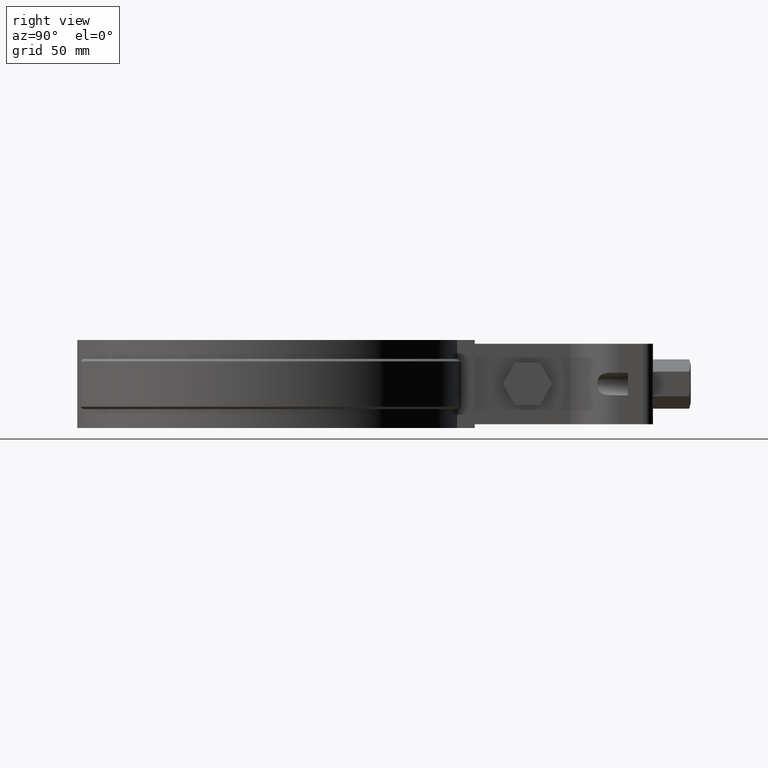
[diagram: clean part render]
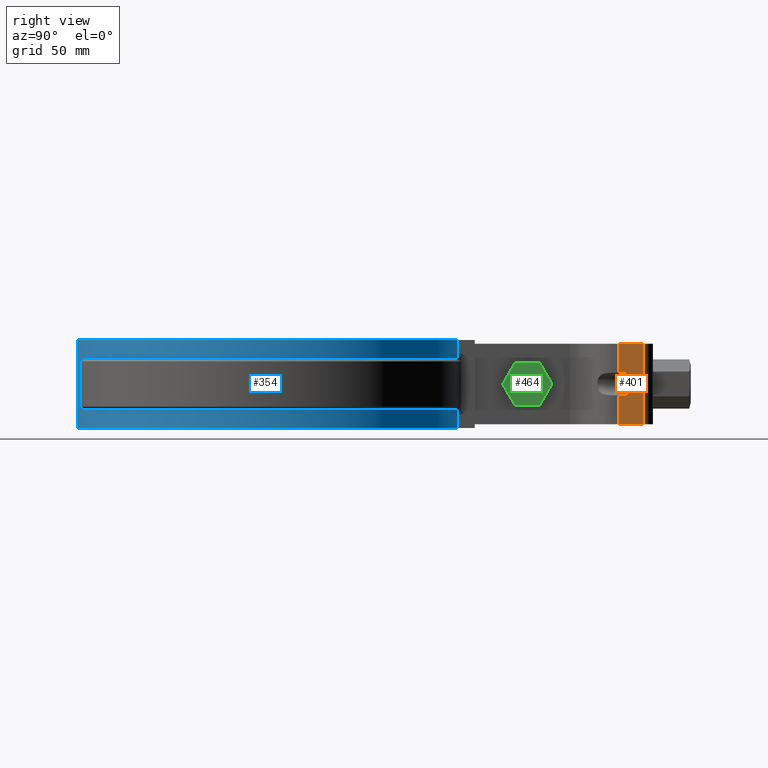
[diagram: same view with three faces highlighted in distinct colors, each labeled with its STEP entity id]
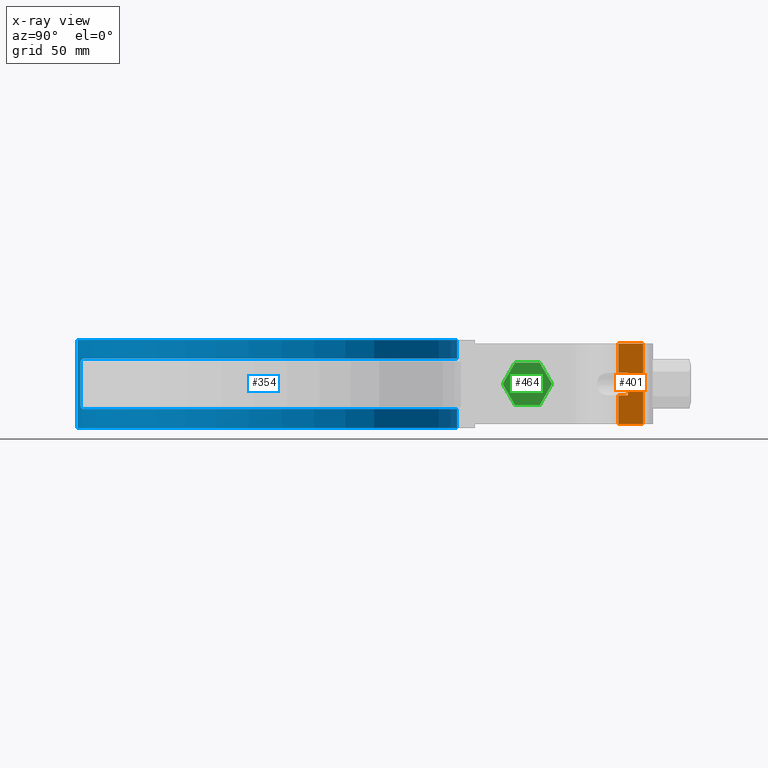
[diagram: x-ray of the same camera — body ghosted, the three highlighted faces saturated]
A machine part, right view with three faces highlighted in distinct colors.
The next image is the same camera in x-ray (body ghosted, the three faces saturated) — at least one of them is partly hidden behind the body in this view.
Their STEP definitions:

[orange] entity #401 — the highlighted planar face has unit normal (1, -0, 0).
#401 = ADVANCED_FACE( '', ( #675 ), #676, .T. );
#675 = FACE_OUTER_BOUND( '', #1810, .T. );
#676 = PLANE( '', #1811 );
#1810 = EDGE_LOOP( '', ( #4233, #4234, #4235, #4236, #4237, #4238, #4239, #4240 ) );
#1811 = AXIS2_PLACEMENT_3D( '', #4241, #4242, #4243 );
#4233 = ORIENTED_EDGE( '', *, *, #5206, .F. );
#4234 = ORIENTED_EDGE( '', *, *, #5207, .T. );
#4235 = ORIENTED_EDGE( '', *, *, #5208, .F. );
#4236 = ORIENTED_EDGE( '', *, *, #5209, .F. );
#4237 = ORIENTED_EDGE( '', *, *, #5210, .F. );
#4238 = ORIENTED_EDGE( '', *, *, #5211, .T. );
#4239 = ORIENTED_EDGE( '', *, *, #5203, .T. );
#4240 = ORIENTED_EDGE( '', *, *, #5212, .F. );
#4241 = CARTESIAN_POINT( '', ( 17.5000000000000, 139.502812218311, -32.0000000000000 ) );
#4242 = DIRECTION( '', ( 1.00000000000000, -6.93889390390723E-017, 0.000000000000000 ) );
#4243 = DIRECTION( '', ( -6.93889390390723E-017, -1.00000000000000, 0.000000000000000 ) );
#5203 = EDGE_CURVE( '', #5833, #5830, #5834, .T. );
#5206 = EDGE_CURVE( '', #5838, #5839, #5840, .T. );
#5207 = EDGE_CURVE( '', #5838, #5841, #5842, .T. );
#5208 = EDGE_CURVE( '', #5843, #5841, #5844, .T. );
#5209 = EDGE_CURVE( '', #5845, #5843, #5846, .T. );
#5210 = EDGE_CURVE( '', #5847, #5845, #5848, .T. );
#5211 = EDGE_CURVE( '', #5847, #5833, #5849, .T. );
#5212 = EDGE_CURVE( '', #5839, #5830, #5850, .T. );
#5830 = VERTEX_POINT( '', #8537 );
#5833 = VERTEX_POINT( '', #8540 );
#5834 = LINE( '', #8541, #8542 );
#5838 = VERTEX_POINT( '', #8547 );
#5839 = VERTEX_POINT( '', #8548 );
#5840 = LINE( '', #8549, #8550 );
#5841 = VERTEX_POINT( '', #8551 );
#5842 = LINE( '', #8552, #8553 );
#5843 = VERTEX_POINT( '', #8554 );
#5844 = LINE( '', #8555, #8556 );
#5845 = VERTEX_POINT( '', #8557 );
#5846 = LINE( '', #8558, #8559 );
#5847 = VERTEX_POINT( '', #8560 );
#5848 = LINE( '', #8561, #8562 );
#5849 = LINE( '', #8563, #8564 );
#5850 = LINE( '', #8565, #8566 );
#8537 = CARTESIAN_POINT( '', ( 17.5000000000000, 149.297141712794, -3.46944695195361E-015 ) );
#8540 = CARTESIAN_POINT( '', ( 17.5000000000000, 149.297141712794, -32.0000000000000 ) );
#8541 = CARTESIAN_POINT( '', ( 17.5000000000000, 149.297141712794, -32.0000000000000 ) );
#8542 = VECTOR( '', #9590, 1000.00000000000 );
#8547 = CARTESIAN_POINT( '', ( 17.5000000000000, 139.502812218311, -11.5000000000000 ) );
#8548 = CARTESIAN_POINT( '', ( 17.5000000000000, 139.502812218311, -3.46944695195361E-015 ) );
#8549 = CARTESIAN_POINT( '', ( 17.5000000000000, 139.502812218311, -32.0000000000000 ) );
#8550 = VECTOR( '', #9595, 1000.00000000000 );
#8551 = CARTESIAN_POINT( '', ( 17.5000000000000, 143.297141712794, -11.5000000000000 ) );
#8552 = CARTESIAN_POINT( '', ( 17.5000000000000, 128.297141712794, -11.5000000000000 ) );
#8553 = VECTOR( '', #9596, 1000.00000000000 );
#8554 = CARTESIAN_POINT( '', ( 17.5000000000000, 143.297141712794, -20.5000000000000 ) );
#8555 = CARTESIAN_POINT( '', ( 17.5000000000000, 143.297141712794, -32.0000000000000 ) );
#8556 = VECTOR( '', #9597, 1000.00000000000 );
#8557 = CARTESIAN_POINT( '', ( 17.5000000000000, 139.502812218311, -20.5000000000000 ) );
#8558 = CARTESIAN_POINT( '', ( 17.5000000000000, 128.297141712794, -20.5000000000000 ) );
#8559 = VECTOR( '', #9598, 1000.00000000000 );
#8560 = CARTESIAN_POINT( '', ( 17.5000000000000, 139.502812218311, -32.0000000000000 ) );
#8561 = CARTESIAN_POINT( '', ( 17.5000000000000, 139.502812218311, -32.0000000000000 ) );
#8562 = VECTOR( '', #9599, 1000.00000000000 );
#8563 = CARTESIAN_POINT( '', ( 17.5000000000000, 139.502812218311, -32.0000000000000 ) );
#8564 = VECTOR( '', #9600, 1000.00000000000 );
#8565 = CARTESIAN_POINT( '', ( 17.5000000000000, 139.502812218311, -3.46944695195361E-015 ) );
#8566 = VECTOR( '', #9601, 1000.00000000000 );
#9590 = DIRECTION( '', ( 0.000000000000000, 0.000000000000000, 1.00000000000000 ) );
#9595 = DIRECTION( '', ( 0.000000000000000, 0.000000000000000, 1.00000000000000 ) );
#9596 = DIRECTION( '', ( -4.11604168809452E-032, 1.00000000000000, -1.83690953073357E-016 ) );
#9597 = DIRECTION( '', ( 1.27461203448362E-032, 1.83690953073357E-016, 1.00000000000000 ) );
#9598 = DIRECTION( '', ( -4.11604168809452E-032, 1.00000000000000, -1.83690953073357E-016 ) );
#9599 = DIRECTION( '', ( 0.000000000000000, 0.000000000000000, 1.00000000000000 ) );
#9600 = DIRECTION( '', ( 6.93889390390723E-017, 1.00000000000000, 0.000000000000000 ) );
#9601 = DIRECTION( '', ( 6.93889390390723E-017, 1.00000000000000, 0.000000000000000 ) );

[blue] entity #354 — the highlighted cylindrical surface (partial cylindrical patch) has radius 75.9 mm, axis along (0, 0, -1).
#354 = ADVANCED_FACE( '', ( #581 ), #582, .T. );
#581 = FACE_OUTER_BOUND( '', #1716, .T. );
#582 = CYLINDRICAL_SURFACE( '', #1717, 75.9000000000000 );
#1716 = EDGE_LOOP( '', ( #3470, #3471, #3472, #3473, #3474, #3475, #3476, #3477, #3478, #3479, #3480, #3481, #3482, #3483, #3484, #3485, #3486, #3487, #3488, #3489 ) );
#1717 = AXIS2_PLACEMENT_3D( '', #3490, #3491, #3492 );
#3470 = ORIENTED_EDGE( '', *, *, #5096, .T. );
#3471 = ORIENTED_EDGE( '', *, *, #5097, .T. );
#3472 = ORIENTED_EDGE( '', *, *, #5098, .T. );
#3473 = ORIENTED_EDGE( '', *, *, #5099, .F. );
#3474 = ORIENTED_EDGE( '', *, *, #5100, .T. );
#3475 = ORIENTED_EDGE( '', *, *, #5101, .T. );
#3476 = ORIENTED_EDGE( '', *, *, #5102, .F. );
#3477 = ORIENTED_EDGE( '', *, *, #5103, .F. );
#3478 = ORIENTED_EDGE( '', *, *, #5104, .F. );
#3479 = ORIENTED_EDGE( '', *, *, #5049, .T. );
#3480 = ORIENTED_EDGE( '', *, *, #5105, .T. );
#3481 = ORIENTED_EDGE( '', *, *, #5106, .T. );
#3482 = ORIENTED_EDGE( '', *, *, #5107, .T. );
#3483 = ORIENTED_EDGE( '', *, *, #5108, .T. );
#3484 = ORIENTED_EDGE( '', *, *, #5109, .T. );
#3485 = ORIENTED_EDGE( '', *, *, #5110, .T. );
#3486 = ORIENTED_EDGE( '', *, *, #5111, .F. );
#3487 = ORIENTED_EDGE( '', *, *, #5053, .T. );
#3488 = ORIENTED_EDGE( '', *, *, #5112, .T. );
#3489 = ORIENTED_EDGE( '', *, *, #5113, .F. );
#3490 = CARTESIAN_POINT( '', ( -3.46944695195361E-015, -1.38777878078145E-014, -33.5000000000000 ) );
#3491 = DIRECTION( '', ( 0.000000000000000, 0.000000000000000, -1.00000000000000 ) );
#3492 = DIRECTION( '', ( -0.110671936758893, -0.993856992939143, 0.000000000000000 ) );
#5049 = EDGE_CURVE( '', #5581, #5579, #5582, .T. );
#5053 = EDGE_CURVE( '', #5589, #5587, #5590, .T. );
#5096 = EDGE_CURVE( '', #5665, #5666, #5667, .T. );
#5097 = EDGE_CURVE( '', #5666, #5668, #5669, .T. );
#5098 = EDGE_CURVE( '', #5668, #5670, #5671, .F. );
#5099 = EDGE_CURVE( '', #5672, #5670, #5673, .T. );
#5100 = EDGE_CURVE( '', #5672, #5674, #5675, .T. );
#5101 = EDGE_CURVE( '', #5674, #5676, #5677, .T. );
#5102 = EDGE_CURVE( '', #5678, #5676, #5679, .T. );
#5103 = EDGE_CURVE( '', #5680, #5678, #5681, .T. );
#5104 = EDGE_CURVE( '', #5581, #5680, #5682, .T. );
#5105 = EDGE_CURVE( '', #5579, #5683, #5684, .T. );
#5106 = EDGE_CURVE( '', #5683, #5685, #5686, .T. );
#5107 = EDGE_CURVE( '', #5685, #5687, #5688, .T. );
#5108 = EDGE_CURVE( '', #5687, #5689, #5690, .T. );
#5109 = EDGE_CURVE( '', #5689, #5691, #5692, .F. );
#5110 = EDGE_CURVE( '', #5691, #5693, #5694, .T. );
#5111 = EDGE_CURVE( '', #5589, #5693, #5695, .T. );
#5112 = EDGE_CURVE( '', #5587, #5696, #5697, .T. );
#5113 = EDGE_CURVE( '', #5665, #5696, #5698, .T. );
#5579 = VERTEX_POINT( '', #7288 );
#5581 = VERTEX_POINT( '', #7291 );
#5582 = LINE( '', #7292, #7293 );
#5587 = VERTEX_POINT( '', #7300 );
#5589 = VERTEX_POINT( '', #7303 );
#5590 = LINE( '', #7304, #7305 );
#5665 = VERTEX_POINT( '', #8178 );
#5666 = VERTEX_POINT( '', #8179 );
#5667 = CIRCLE( '', #8180, 75.9000000000000 );
#5668 = VERTEX_POINT( '', #8181 );
#5669 = B_SPLINE_CURVE_WITH_KNOTS( '', 3, ( #8182, #8183, #8184, #8185 ), .UNSPECIFIED., .F., .F., ( 4, 4 ), ( 0.00574025824252765, 0.00596115787424437 ), .UNSPECIFIED. );
#5670 = VERTEX_POINT( '', #8186 );
#5671 = ELLIPSE( '', #8187, 107.338809384118, 75.9000000000000 );
#5672 = VERTEX_POINT( '', #8188 );
#5673 = LINE( '', #8189, #8190 );
#5674 = VERTEX_POINT( '', #8191 );
#5675 = ELLIPSE( '', #8192, 107.338809384118, 75.9000000000000 );
#5676 = VERTEX_POINT( '', #8193 );
#5677 = B_SPLINE_CURVE_WITH_KNOTS( '', 3, ( #8194, #8195, #8196, #8197 ), .UNSPECIFIED., .F., .F., ( 4, 4 ), ( 0.00801465763716970, 0.00823560887261827 ), .UNSPECIFIED. );
#5678 = VERTEX_POINT( '', #8198 );
#5679 = CIRCLE( '', #8199, 75.9000000000000 );
#5680 = VERTEX_POINT( '', #8200 );
#5681 = LINE( '', #8201, #8202 );
#5682 = CIRCLE( '', #8203, 75.9000000000000 );
#5683 = VERTEX_POINT( '', #8204 );
#5684 = CIRCLE( '', #8205, 75.9000000000000 );
#5685 = VERTEX_POINT( '', #8206 );
#5686 = B_SPLINE_CURVE_WITH_KNOTS( '', 3, ( #8207, #8208, #8209, #8210 ), .UNSPECIFIED., .F., .F., ( 4, 4 ), ( 0.00574025824252770, 0.00596115787424437 ), .UNSPECIFIED. );
#5687 = VERTEX_POINT( '', #8211 );
#5688 = ELLIPSE( '', #8212, 107.338809384118, 75.9000000000000 );
#5689 = VERTEX_POINT( '', #8213 );
#5690 = LINE( '', #8214, #8215 );
#5691 = VERTEX_POINT( '', #8216 );
#5692 = ELLIPSE( '', #8217, 107.338809384118, 75.9000000000000 );
#5693 = VERTEX_POINT( '', #8218 );
#5694 = B_SPLINE_CURVE_WITH_KNOTS( '', 3, ( #8219, #8220, #8221, #8222 ), .UNSPECIFIED., .F., .F., ( 4, 4 ), ( 0.00801465763716946, 0.00823560887261823 ), .UNSPECIFIED. );
#5695 = CIRCLE( '', #8223, 75.9000000000000 );
#5696 = VERTEX_POINT( '', #8224 );
#5697 = CIRCLE( '', #8225, 75.9000000000000 );
#5698 = LINE( '', #8226, #8227 );
#7288 = CARTESIAN_POINT( '', ( 8.40000000000000, 75.4337457640809, -26.0000000000000 ) );
#7291 = CARTESIAN_POINT( '', ( 8.40000000000001, 75.4337457640809, -33.5000000000000 ) );
#7292 = CARTESIAN_POINT( '', ( 8.40000000000001, 75.4337457640809, -33.5000000000000 ) );
#7293 = VECTOR( '', #9372, 1000.00000000000 );
#7300 = CARTESIAN_POINT( '', ( 8.40000000000001, 75.4337457640809, 1.50000000000000 ) );
#7303 = CARTESIAN_POINT( '', ( 8.40000000000001, 75.4337457640809, -6.00000000000000 ) );
#7304 = CARTESIAN_POINT( '', ( 8.40000000000001, 75.4337457640809, -33.5000000000000 ) );
#7305 = VECTOR( '', #9376, 1000.00000000000 );
#8178 = CARTESIAN_POINT( '', ( -8.39999999999998, 75.4337457640810, -6.00000000000000 ) );
#8179 = CARTESIAN_POINT( '', ( -19.3256757353931, -73.3984213547570, -6.00000000000000 ) );
#8180 = AXIS2_PLACEMENT_3D( '', #9402, #9403, #9404 );
#8181 = CARTESIAN_POINT( '', ( -19.1154387864888, -73.4534546498666, -6.05345464986656 ) );
#8182 = CARTESIAN_POINT( '', ( -19.3256757353931, -73.3984213547570, -5.99999999999999 ) );
#8183 = CARTESIAN_POINT( '', ( -19.2554621015396, -73.4169084815236, -6.01743064928323 ) );
#8184 = CARTESIAN_POINT( '', ( -19.1853843258704, -73.4352521067349, -6.03525210673483 ) );
#8185 = CARTESIAN_POINT( '', ( -19.1154387864888, -73.4534546498666, -6.05345464986654 ) );
#8186 = CARTESIAN_POINT( '', ( -15.0149925074907, -74.4000000000000, -7.00000000000000 ) );
#8187 = AXIS2_PLACEMENT_3D( '', #9405, #9406, #9407 );
#8188 = CARTESIAN_POINT( '', ( -15.0149925074907, -74.4000000000000, -25.0000000000000 ) );
#8189 = CARTESIAN_POINT( '', ( -15.0149925074907, -74.4000000000000, -26.0000000000000 ) );
#8190 = VECTOR( '', #9408, 1000.00000000000 );
#8191 = CARTESIAN_POINT( '', ( -19.1154387864888, -73.4534546498666, -25.9465453501334 ) );
#8192 = AXIS2_PLACEMENT_3D( '', #9409, #9410, #9411 );
#8193 = CARTESIAN_POINT( '', ( -19.3256757353929, -73.3984213547570, -26.0000000000000 ) );
#8194 = CARTESIAN_POINT( '', ( -19.1154387864888, -73.4534546498666, -25.9465453501335 ) );
#8195 = CARTESIAN_POINT( '', ( -19.1853843258704, -73.4352521067349, -25.9647478932652 ) );
#8196 = CARTESIAN_POINT( '', ( -19.2554621015395, -73.4169084815236, -25.9825693507167 ) );
#8197 = CARTESIAN_POINT( '', ( -19.3256757353929, -73.3984213547570, -26.0000000000000 ) );
#8198 = CARTESIAN_POINT( '', ( -8.39999999999998, 75.4337457640810, -26.0000000000000 ) );
#8199 = AXIS2_PLACEMENT_3D( '', #9412, #9413, #9414 );
#8200 = CARTESIAN_POINT( '', ( -8.39999999999998, 75.4337457640810, -33.5000000000000 ) );
#8201 = CARTESIAN_POINT( '', ( -8.39999999999998, 75.4337457640810, -33.5000000000000 ) );
#8202 = VECTOR( '', #9415, 1000.00000000000 );
#8203 = AXIS2_PLACEMENT_3D( '', #9416, #9417, #9418 );
#8204 = CARTESIAN_POINT( '', ( 19.3256757353931, -73.3984213547570, -26.0000000000000 ) );
#8205 = AXIS2_PLACEMENT_3D( '', #9419, #9420, #9421 );
#8206 = CARTESIAN_POINT( '', ( 19.1154387864888, -73.4534546498666, -25.9465453501335 ) );
#8207 = CARTESIAN_POINT( '', ( 19.3256757353931, -73.3984213547570, -26.0000000000000 ) );
#8208 = CARTESIAN_POINT( '', ( 19.2554621015396, -73.4169084815236, -25.9825693507168 ) );
#8209 = CARTESIAN_POINT( '', ( 19.1853843258704, -73.4352521067349, -25.9647478932652 ) );
#8210 = CARTESIAN_POINT( '', ( 19.1154387864888, -73.4534546498666, -25.9465453501335 ) );
#8211 = CARTESIAN_POINT( '', ( 15.0149925074907, -74.4000000000000, -25.0000000000000 ) );
#8212 = AXIS2_PLACEMENT_3D( '', #9422, #9423, #9424 );
#8213 = CARTESIAN_POINT( '', ( 15.0149925074907, -74.4000000000000, -7.00000000000001 ) );
#8214 = CARTESIAN_POINT( '', ( 15.0149925074907, -74.4000000000000, -26.0000000000000 ) );
#8215 = VECTOR( '', #9425, 1000.00000000000 );
#8216 = CARTESIAN_POINT( '', ( 19.1154387864888, -73.4534546498666, -6.05345464986654 ) );
#8217 = AXIS2_PLACEMENT_3D( '', #9426, #9427, #9428 );
#8218 = CARTESIAN_POINT( '', ( 19.3256757353931, -73.3984213547570, -6.00000000000000 ) );
#8219 = CARTESIAN_POINT( '', ( 19.1154387864888, -73.4534546498666, -6.05345464986653 ) );
#8220 = CARTESIAN_POINT( '', ( 19.1853843258704, -73.4352521067349, -6.03525210673482 ) );
#8221 = CARTESIAN_POINT( '', ( 19.2554621015396, -73.4169084815236, -6.01743064928322 ) );
#8222 = CARTESIAN_POINT( '', ( 19.3256757353931, -73.3984213547570, -5.99999999999998 ) );
#8223 = AXIS2_PLACEMENT_3D( '', #9429, #9430, #9431 );
#8224 = CARTESIAN_POINT( '', ( -8.39999999999998, 75.4337457640810, 1.50000000000000 ) );
#8225 = AXIS2_PLACEMENT_3D( '', #9432, #9433, #9434 );
#8226 = CARTESIAN_POINT( '', ( -8.39999999999998, 75.4337457640810, -33.5000000000000 ) );
#8227 = VECTOR( '', #9435, 1000.00000000000 );
#9372 = DIRECTION( '', ( 0.000000000000000, 0.000000000000000, 1.00000000000000 ) );
#9376 = DIRECTION( '', ( 0.000000000000000, 0.000000000000000, 1.00000000000000 ) );
#9402 = CARTESIAN_POINT( '', ( -3.46944695195361E-015, -1.38777878078145E-014, -6.00000000000000 ) );
#9403 = DIRECTION( '', ( 0.000000000000000, 0.000000000000000, 1.00000000000000 ) );
#9404 = DIRECTION( '', ( 1.00000000000000, 0.000000000000000, 0.000000000000000 ) );
#9405 = CARTESIAN_POINT( '', ( -3.46944695195361E-015, -1.38777878078145E-014, 67.3999999999999 ) );
#9406 = DIRECTION( '', ( 0.000000000000000, 0.707106781186547, -0.707106781186548 ) );
#9407 = DIRECTION( '', ( 0.000000000000000, 0.707106781186548, 0.707106781186547 ) );
#9408 = DIRECTION( '', ( 0.000000000000000, 0.000000000000000, 1.00000000000000 ) );
#9409 = CARTESIAN_POINT( '', ( -3.46944695195361E-015, -1.38777878078145E-014, -99.4000000000000 ) );
#9410 = DIRECTION( '', ( 0.000000000000000, -0.707106781186548, -0.707106781186548 ) );
#9411 = DIRECTION( '', ( 0.000000000000000, -0.707106781186547, 0.707106781186547 ) );
#9412 = CARTESIAN_POINT( '', ( -3.46944695195361E-015, -1.38777878078145E-014, -26.0000000000000 ) );
#9413 = DIRECTION( '', ( 0.000000000000000, 0.000000000000000, 1.00000000000000 ) );
#9414 = DIRECTION( '', ( 1.00000000000000, 0.000000000000000, 0.000000000000000 ) );
#9415 = DIRECTION( '', ( 0.000000000000000, 0.000000000000000, 1.00000000000000 ) );
#9416 = CARTESIAN_POINT( '', ( -3.46944695195361E-015, -1.38777878078145E-014, -33.5000000000000 ) );
#9417 = DIRECTION( '', ( 0.000000000000000, 0.000000000000000, -1.00000000000000 ) );
#9418 = DIRECTION( '', ( 1.00000000000000, 0.000000000000000, 0.000000000000000 ) );
#9419 = CARTESIAN_POINT( '', ( 6.93889390390723E-015, -2.77555756156289E-014, -26.0000000000000 ) );
#9420 = DIRECTION( '', ( 0.000000000000000, 0.000000000000000, -1.00000000000000 ) );
#9421 = DIRECTION( '', ( 1.00000000000000, 1.11022302462516E-016, 0.000000000000000 ) );
#9422 = CARTESIAN_POINT( '', ( -3.46944695195361E-015, -1.38777878078145E-014, -99.3999999999998 ) );
#9423 = DIRECTION( '', ( 3.92523114670943E-017, -0.707106781186546, -0.707106781186549 ) );
#9424 = DIRECTION( '', ( 3.92523114670944E-017, -0.707106781186549, 0.707106781186546 ) );
#9425 = DIRECTION( '', ( 0.000000000000000, 0.000000000000000, 1.00000000000000 ) );
#9426 = CARTESIAN_POINT( '', ( -3.46944695195361E-015, -1.38777878078145E-014, 67.3999999999998 ) );
#9427 = DIRECTION( '', ( -3.92523114670943E-017, 0.707106781186547, -0.707106781186548 ) );
#9428 = DIRECTION( '', ( -3.92523114670944E-017, 0.707106781186548, 0.707106781186547 ) );
#9429 = CARTESIAN_POINT( '', ( 6.93889390390723E-015, -2.77555756156289E-014, -6.00000000000000 ) );
#9430 = DIRECTION( '', ( 0.000000000000000, 0.000000000000000, -1.00000000000000 ) );
#9431 = DIRECTION( '', ( 1.00000000000000, 1.11022302462516E-016, 0.000000000000000 ) );
#9432 = CARTESIAN_POINT( '', ( -3.46944695195361E-015, -1.38777878078145E-014, 1.50000000000000 ) );
#9433 = DIRECTION( '', ( 0.000000000000000, 0.000000000000000, -1.00000000000000 ) );
#9434 = DIRECTION( '', ( 1.00000000000000, 0.000000000000000, 0.000000000000000 ) );
#9435 = DIRECTION( '', ( 0.000000000000000, 0.000000000000000, 1.00000000000000 ) );

[green] entity #464 — the highlighted planar face has unit normal (-1, -0, 0).
#464 = ADVANCED_FACE( '', ( #821 ), #822, .F. );
#821 = FACE_OUTER_BOUND( '', #1956, .T. );
#822 = PLANE( '', #1957 );
#1956 = EDGE_LOOP( '', ( #4752, #4753, #4754, #4755, #4756, #4757 ) );
#1957 = AXIS2_PLACEMENT_3D( '', #4758, #4759, #4760 );
#4752 = ORIENTED_EDGE( '', *, *, #5365, .T. );
#4753 = ORIENTED_EDGE( '', *, *, #5368, .T. );
#4754 = ORIENTED_EDGE( '', *, *, #5371, .T. );
#4755 = ORIENTED_EDGE( '', *, *, #5372, .T. );
#4756 = ORIENTED_EDGE( '', *, *, #5373, .T. );
#4757 = ORIENTED_EDGE( '', *, *, #5374, .T. );
#4758 = CARTESIAN_POINT( '', ( 13.4999999999997, 88.6147098484590, -24.4999999999998 ) );
#4759 = DIRECTION( '', ( -1.00000000000000, -6.02334540269725E-017, 0.000000000000000 ) );
#4760 = DIRECTION( '', ( 5.21637013450398E-017, -0.866025403784430, 0.500000000000015 ) );
#5365 = EDGE_CURVE( '', #6106, #6104, #6107, .T. );
#5368 = EDGE_CURVE( '', #6104, #6109, #6111, .T. );
#5371 = EDGE_CURVE( '', #6109, #6116, #6117, .T. );
#5372 = EDGE_CURVE( '', #6116, #6118, #6119, .T. );
#5373 = EDGE_CURVE( '', #6118, #6120, #6121, .T. );
#5374 = EDGE_CURVE( '', #6120, #6106, #6122, .T. );
#6104 = VERTEX_POINT( '', #9060 );
#6106 = VERTEX_POINT( '', #9063 );
#6107 = LINE( '', #9064, #9065 );
#6109 = VERTEX_POINT( '', #9068 );
#6111 = LINE( '', #9071, #9072 );
#6116 = VERTEX_POINT( '', #9077 );
#6117 = LINE( '', #9078, #9079 );
#6118 = VERTEX_POINT( '', #9080 );
#6119 = LINE( '', #9081, #9082 );
#6120 = VERTEX_POINT( '', #9083 );
#6121 = LINE( '', #9084, #9085 );
#6122 = LINE( '', #9086, #9087 );
#9060 = CARTESIAN_POINT( '', ( 13.4999999999997, 108.244619000905, -24.4999999999998 ) );
#9063 = CARTESIAN_POINT( '', ( 13.4999999999997, 98.4296644246820, -24.4999999999998 ) );
#9064 = CARTESIAN_POINT( '', ( 13.4999999999997, 98.4296644246820, -24.4999999999998 ) );
#9065 = VECTOR( '', #9843, 999.999999999980 );
#9068 = CARTESIAN_POINT( '', ( 13.4999999999997, 113.152096289017, -16.0000000000000 ) );
#9071 = CARTESIAN_POINT( '', ( 13.4999999999997, 108.244619000905, -24.4999999999998 ) );
#9072 = VECTOR( '', #9846, 1000.00000000001 );
#9077 = CARTESIAN_POINT( '', ( 13.4999999999997, 108.244619000905, -7.50000000000017 ) );
#9078 = CARTESIAN_POINT( '', ( 13.4999999999997, 113.152096289017, -16.0000000000000 ) );
#9079 = VECTOR( '', #9853, 1000.00000000001 );
#9080 = CARTESIAN_POINT( '', ( 13.4999999999997, 98.4296644246820, -7.50000000000017 ) );
#9081 = CARTESIAN_POINT( '', ( 13.4999999999997, 108.244619000905, -7.50000000000017 ) );
#9082 = VECTOR( '', #9854, 999.999999999980 );
#9083 = CARTESIAN_POINT( '', ( 13.4999999999997, 93.5221871365705, -16.0000000000000 ) );
#9084 = CARTESIAN_POINT( '', ( 13.4999999999997, 98.4296644246820, -7.50000000000017 ) );
#9085 = VECTOR( '', #9855, 1000.00000000001 );
#9086 = CARTESIAN_POINT( '', ( 13.4999999999997, 93.5221871365705, -16.0000000000000 ) );
#9087 = VECTOR( '', #9856, 1000.00000000001 );
#9843 = DIRECTION( '', ( -6.02334540269725E-017, 1.00000000000000, -3.33066907387560E-016 ) );
#9846 = DIRECTION( '', ( -3.01167270134853E-017, 0.499999999999985, 0.866025403784447 ) );
#9853 = DIRECTION( '', ( 3.01167270134853E-017, -0.499999999999985, 0.866025403784447 ) );
#9854 = DIRECTION( '', ( 6.02334540269725E-017, -1.00000000000000, -1.39206495317305E-049 ) );
#9855 = DIRECTION( '', ( 3.01167270134853E-017, -0.499999999999985, -0.866025403784447 ) );
#9856 = DIRECTION( '', ( -3.01167270134853E-017, 0.499999999999984, -0.866025403784448 ) );